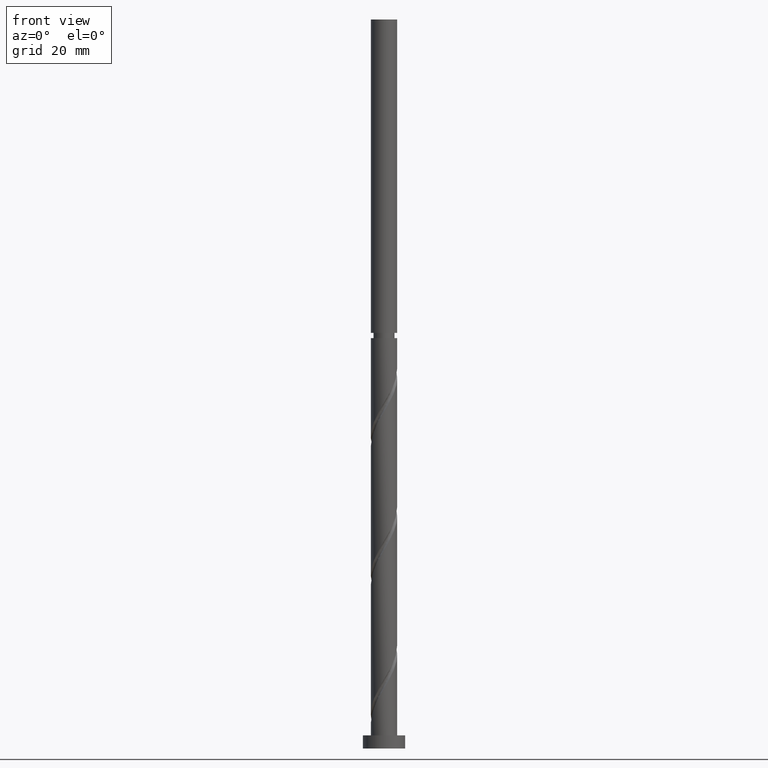
[diagram: clean part render]
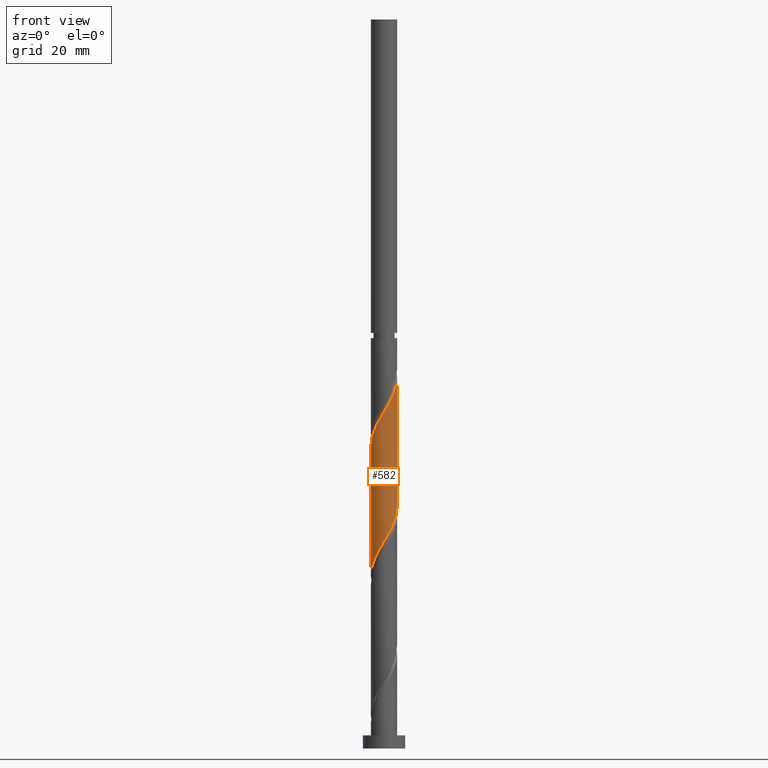
[diagram: same view with one face highlighted and labeled with its STEP entity id]
A machine part, front view. The second image highlights one B-rep face of the part: STEP entity #582.
In plain terms, the highlighted cylindrical surface (edge-blend (fillet) strip) has radius 5 mm, axis along (-0, -0, -1).
Its self-contained STEP definition (entity closure, byte-faithful):
#2 = CARTESIAN_POINT ( 'NONE',  ( -0.9949874371066211864, -4.899999999999999467, 76.96452953022189547 ) ) ;
#13 = CARTESIAN_POINT ( 'NONE',  ( 3.983038583135035449, -3.022483026463116840, 86.33952953022193810 ) ) ;
#48 = ORIENTED_EDGE ( 'NONE', *, *, #783, .T. ) ;
#67 = CARTESIAN_POINT ( 'NONE',  ( -5.000000000000000000, 0.000000000000000000, 276.6500000000000341 ) ) ;
#103 = CARTESIAN_POINT ( 'NONE',  ( -1.229577616888956504, -4.846456322308676512, 125.7145295302219097 ) ) ;
#116 = CARTESIAN_POINT ( 'NONE',  ( -5.000000000000008882, -5.395667128031785037E-15, 114.6650124523158780 ) ) ;
#161 = CARTESIAN_POINT ( 'NONE',  ( -0.1203115516804408452, -4.998552303470705560, 127.5895295302218670 ) ) ;
#189 = CARTESIAN_POINT ( 'NONE',  ( -4.846456322308670295, -1.229577616888953173, 67.58952953022192389 ) ) ;
#200 = CARTESIAN_POINT ( 'NONE',  ( -1.547084842617165501, -4.787891840297520574, 76.02702953022192389 ) ) ;
#225 = CARTESIAN_POINT ( 'NONE',  ( 4.999999999999999112, -9.925639391815112352E-16, 91.76404660812796976 ) ) ;
#276 = DIRECTION ( 'NONE',  ( -0.000000000000000000, -0.000000000000000000, -1.000000000000000000 ) ) ;
#290 = CARTESIAN_POINT ( 'NONE',  ( -2.277187526117663730, -4.451338784106887658, 123.8395295302218813 ) ) ;
#346 = VERTEX_POINT ( 'NONE', #429 ) ;
#367 = CARTESIAN_POINT ( 'NONE',  ( 0.6835131349569547599, -4.984996447238920325, 79.77702953022193810 ) ) ;
#374 =( BOUNDED_CURVE ( )  B_SPLINE_CURVE ( 2, ( #225, #407, #775, #394, #2240, #563, #13, #2275, #2108, #2057, #1514, #935, #1685, #367, #1528, #963, #2, #200, #552, #977, #747, #1504, #1723, #1126, #1872, #590, #189, #2251, #1929, #758, #1321 ),
 .UNSPECIFIED., .F., .T. ) 
 B_SPLINE_CURVE_WITH_KNOTS ( ( 3, 2, 2, 2, 2, 2, 2, 2, 2, 2, 2, 2, 2, 2, 2, 3 ),
 ( 0.5545303401299220836, 0.5625000000000000000, 0.5714285714285713969, 0.5803571428571429047, 0.5892857142857143016, 0.5982142857142856984, 0.6071428571428570953, 0.6160714285714286031, 0.6250000000000000000, 0.6339285714285713969, 0.6428571428571429047, 0.6517857142857143016, 0.6607142857142856984, 0.6696428571428570953, 0.6785714285714286031, 0.6795303401299219725 ),
 .UNSPECIFIED. ) 
 CURVE ( )  GEOMETRIC_REPRESENTATION_ITEM ( )  RATIONAL_B_SPLINE_CURVE ( ( 0.9079949616361837617, 0.9039886423360469214, 0.9090909090909136125, 0.9033747362665885960, 0.9090909090909136125, 0.9033747362665885960, 0.9090909090909136125, 0.9033747362665885960, 0.9090909090909136125, 0.9033747362665885960, 0.9090909090909136125, 0.9033747362665885960, 0.9090909090909136125, 0.9033747362665885960, 0.9090909090909136125, 0.9033747362665885960, 0.9090909090909136125, 0.9033747362665885960, 0.9090909090909136125, 0.9033747362665885960, 0.9090909090909136125, 0.9033747362665885960, 0.9090909090909136125, 0.9033747362665885960, 0.9090909090909136125, 0.9033747362665885960, 0.9090909090909136125, 0.9033747362665885960, 0.9090909090909136125, 0.9084770030214555092, 0.9079949616361838727 ) ) 
 REPRESENTATION_ITEM ( '' )  );
#394 = CARTESIAN_POINT ( 'NONE',  ( 4.787891840297520574, -1.547084842617165945, 89.15202953022190968 ) ) ;
#407 = CARTESIAN_POINT ( 'NONE',  ( 5.000000000000000888, -0.5025189076296072699, 90.92577552916438322 ) ) ;
#429 = CARTESIAN_POINT ( 'NONE',  ( -4.999999999999999112, -1.357499101782833371E-14, 65.51404660812798397 ) ) ;
#470 = CARTESIAN_POINT ( 'NONE',  ( -3.210609744079815364, -3.833012532097932912, 121.9645295302218670 ) ) ;
#472 = VECTOR ( 'NONE', #2124, 1000.000000000000000 ) ;
#483 = CARTESIAN_POINT ( 'NONE',  ( -0.6835131349569575354, -4.984996447238927431, 126.6520295302219523 ) ) ;
#525 = CARTESIAN_POINT ( 'NONE',  ( 2.573702359565722020, -4.323590631524826478, 132.2770295302219097 ) ) ;
#552 = CARTESIAN_POINT ( 'NONE',  ( -2.060393601091442317, -4.555741235911170861, 75.08952953022190968 ) ) ;
#563 = CARTESIAN_POINT ( 'NONE',  ( 4.323590631524821148, -2.573702359565719799, 87.27702953022190968 ) ) ;
#578 = CARTESIAN_POINT ( 'NONE',  ( 5.000000000000007994, -2.432901084008798987E-15, 140.9150124523158354 ) ) ;
#582 = ADVANCED_FACE ( 'NONE', ( #780 ), #809, .T. ) ;
#590 = CARTESIAN_POINT ( 'NONE',  ( -4.707916197378419376, -1.775642098820951587, 68.52702953022192389 ) ) ;
#657 = EDGE_CURVE ( 'NONE', #2194, #2419, #2311, .T. ) ;
#707 = CARTESIAN_POINT ( 'NONE',  ( 2.060393601091443205, -4.555741235911177966, 131.3395295302218813 ) ) ;
#719 = CARTESIAN_POINT ( 'NONE',  ( 4.451338784106887658, -2.277187526117664174, 136.9645295302219097 ) ) ;
#734 = CARTESIAN_POINT ( 'NONE',  ( -4.787891840297527679, -1.547084842617165945, 117.2770295302218813 ) ) ;
#747 = CARTESIAN_POINT ( 'NONE',  ( -3.022483026463116840, -3.983038583135035449, 73.21452953022192389 ) ) ;
#758 = CARTESIAN_POINT ( 'NONE',  ( -5.000000000000000000, -0.06016448583195890820, 65.61440929635305963 ) ) ;
#775 = CARTESIAN_POINT ( 'NONE',  ( 4.899999999999999467, -0.9949874371066214085, 90.08952953022192389 ) ) ;
#780 = FACE_OUTER_BOUND ( 'NONE', #1092, .T. ) ;
#783 = EDGE_CURVE ( 'NONE', #1037, #346, #1964, .T. ) ;
#791 = CARTESIAN_POINT ( 'NONE',  ( 4.984996447238927431, -0.6835131349569582015, 139.7770295302219665 ) ) ;
#809 = CYLINDRICAL_SURFACE ( 'NONE', #1972, 5.000000000000000000 ) ;
#894 = CARTESIAN_POINT ( 'NONE',  ( 0.4428900315960757061, -5.012108159702488130, 128.5270295302219097 ) ) ;
#907 = CARTESIAN_POINT ( 'NONE',  ( 3.471263693360517877, -3.642486534745257742, 134.1520295302219381 ) ) ;
#935 = CARTESIAN_POINT ( 'NONE',  ( 1.775642098820951587, -4.707916197378419376, 81.65202953022193810 ) ) ;
#947 = CARTESIAN_POINT ( 'NONE',  ( -5.000000000000007994, -5.395667128031785825E-15, 114.6650124523158780 ) ) ;
#963 = CARTESIAN_POINT ( 'NONE',  ( -0.4428900315960770939, -5.012108159702480137, 77.90202953022195231 ) ) ;
#977 = CARTESIAN_POINT ( 'NONE',  ( -2.573702359565719355, -4.323590631524821148, 74.15202953022189547 ) ) ;
#1026 = EDGE_CURVE ( 'NONE', #1037, #2194, #1177, .T. ) ;
#1034 = CARTESIAN_POINT ( 'NONE',  ( -4.555741235911177966, -2.060393601091443649, 118.2145295302218955 ) ) ;
#1037 = VERTEX_POINT ( 'NONE', #947 ) ;
#1043 = EDGE_CURVE ( 'NONE', #2419, #346, #374, .T. ) ;
#1092 = EDGE_LOOP ( 'NONE', ( #1938, #2065, #48, #1853 ) ) ;
#1114 = CARTESIAN_POINT ( 'NONE',  ( -4.323590631524826478, -2.573702359565722020, 119.1520295302219097 ) ) ;
#1126 = CARTESIAN_POINT ( 'NONE',  ( -4.194761370835346170, -2.778732953414366769, 70.40202953022190968 ) ) ;
#1174 = DIRECTION ( 'NONE',  ( -1.000000000000000000, 0.000000000000000000, 0.000000000000000000 ) ) ;
#1177 =( BOUNDED_CURVE ( )  B_SPLINE_CURVE ( 2, ( #116, #2345, #1467, #734, #1034, #1114, #1412, #1425, #470, #1233, #290, #1794, #103, #483, #161, #894, #1644, #2396, #707, #525, #1281, #907, #1660, #2409, #719, #1492, #1363, #791, #1696, #1309, #1882 ),
 .UNSPECIFIED., .F., .T. ) 
 B_SPLINE_CURVE_WITH_KNOTS ( ( 3, 2, 2, 2, 2, 2, 2, 2, 2, 2, 2, 2, 2, 2, 2, 3 ),
 ( 0.5545303401299223056, 0.5625000000000000000, 0.5714285714285713969, 0.5803571428571427937, 0.5892857142857143016, 0.5982142857142856984, 0.6071428571428572063, 0.6160714285714286031, 0.6250000000000000000, 0.6339285714285713969, 0.6428571428571427937, 0.6517857142857143016, 0.6607142857142856984, 0.6696428571428572063, 0.6785714285714286031, 0.6795303401299220836 ),
 .UNSPECIFIED. ) 
 CURVE ( )  GEOMETRIC_REPRESENTATION_ITEM ( )  RATIONAL_B_SPLINE_CURVE ( ( 0.9079949616361899789, 0.9039886423360535828, 0.9090909090909201629, 0.9033747362665951464, 0.9090909090909201629, 0.9033747362665951464, 0.9090909090909201629, 0.9033747362665951464, 0.9090909090909201629, 0.9033747362665951464, 0.9090909090909201629, 0.9033747362665951464, 0.9090909090909201629, 0.9033747362665951464, 0.9090909090909201629, 0.9033747362665951464, 0.9090909090909201629, 0.9033747362665951464, 0.9090909090909201629, 0.9033747362665951464, 0.9090909090909201629, 0.9033747362665951464, 0.9090909090909201629, 0.9033747362665951464, 0.9090909090909201629, 0.9033747362665951464, 0.9090909090909201629, 0.9033747362665951464, 0.9090909090909201629, 0.9084770030214619485, 0.9079949616361903120 ) ) 
 REPRESENTATION_ITEM ( '' )  );
#1233 = CARTESIAN_POINT ( 'NONE',  ( -2.778732953414372986, -4.194761370835350611, 122.9020295302219381 ) ) ;
#1242 = VECTOR ( 'NONE', #276, 1000.000000000000000 ) ;
#1281 = CARTESIAN_POINT ( 'NONE',  ( 3.022483026463119504, -3.983038583135042554, 133.2145295302218813 ) ) ;
#1309 = CARTESIAN_POINT ( 'NONE',  ( 5.000000000000006217, -0.06016448583195407873, 140.8146497640907171 ) ) ;
#1321 = CARTESIAN_POINT ( 'NONE',  ( -4.999999999999999112, -1.357499101782833371E-14, 65.51404660812798397 ) ) ;
#1363 = CARTESIAN_POINT ( 'NONE',  ( 4.846456322308676512, -1.229577616888956726, 138.8395295302219097 ) ) ;
#1380 = CARTESIAN_POINT ( 'NONE',  ( 5.000000000000000000, 6.123233995736766282E-16, 276.6500000000000341 ) ) ;
#1412 = CARTESIAN_POINT ( 'NONE',  ( -3.983038583135042554, -3.022483026463119504, 120.0895295302218955 ) ) ;
#1425 = CARTESIAN_POINT ( 'NONE',  ( -3.642486534745257742, -3.471263693360517877, 121.0270295302219097 ) ) ;
#1467 = CARTESIAN_POINT ( 'NONE',  ( -4.900000000000005684, -0.9949874371066209644, 116.3395295302218670 ) ) ;
#1492 = CARTESIAN_POINT ( 'NONE',  ( 4.707916197378425593, -1.775642098820955583, 137.9020295302218813 ) ) ;
#1497 = CARTESIAN_POINT ( 'NONE',  ( 4.999999999999999112, -9.925639391815112352E-16, 91.76404660812796976 ) ) ;
#1504 = CARTESIAN_POINT ( 'NONE',  ( -3.471263693360513880, -3.642486534745251525, 72.27702953022195231 ) ) ;
#1514 = CARTESIAN_POINT ( 'NONE',  ( 2.277187526117658400, -4.451338784106882329, 82.58952953022192389 ) ) ;
#1528 = CARTESIAN_POINT ( 'NONE',  ( 0.1203115516804388052, -4.998552303470700231, 78.83952953022190968 ) ) ;
#1562 = CARTESIAN_POINT ( 'NONE',  ( 0.000000000000000000, 0.000000000000000000, 276.6500000000000341 ) ) ;
#1644 = CARTESIAN_POINT ( 'NONE',  ( 0.9949874371066205203, -4.900000000000005684, 129.4645295302219097 ) ) ;
#1660 = CARTESIAN_POINT ( 'NONE',  ( 3.833012532097932468, -3.210609744079815364, 135.0895295302219097 ) ) ;
#1685 = CARTESIAN_POINT ( 'NONE',  ( 1.229577616888953173, -4.846456322308670295, 80.71452953022189547 ) ) ;
#1696 = CARTESIAN_POINT ( 'NONE',  ( 4.998552303470705560, -0.1203115516804412755, 140.7145295302219097 ) ) ;
#1723 = CARTESIAN_POINT ( 'NONE',  ( -3.833012532097928471, -3.210609744079808703, 71.33952953022192389 ) ) ;
#1794 = CARTESIAN_POINT ( 'NONE',  ( -1.775642098820955583, -4.707916197378425593, 124.7770295302219097 ) ) ;
#1853 = ORIENTED_EDGE ( 'NONE', *, *, #1043, .F. ) ;
#1872 = CARTESIAN_POINT ( 'NONE',  ( -4.451338784106882329, -2.277187526117658400, 69.46452953022193810 ) ) ;
#1882 = CARTESIAN_POINT ( 'NONE',  ( 5.000000000000007994, -2.432901084008798987E-15, 140.9150124523158354 ) ) ;
#1929 = CARTESIAN_POINT ( 'NONE',  ( -4.998552303470700231, -0.1203115516804390411, 65.71452953022190968 ) ) ;
#1938 = ORIENTED_EDGE ( 'NONE', *, *, #657, .F. ) ;
#1945 = DIRECTION ( 'NONE',  ( -0.000000000000000000, -0.000000000000000000, -1.000000000000000000 ) ) ;
#1964 = LINE ( 'NONE', #67, #1242 ) ;
#1972 = AXIS2_PLACEMENT_3D ( 'NONE', #1562, #1945, #1174 ) ;
#2057 = CARTESIAN_POINT ( 'NONE',  ( 2.778732953414366769, -4.194761370835346170, 83.52702953022190968 ) ) ;
#2065 = ORIENTED_EDGE ( 'NONE', *, *, #1026, .F. ) ;
#2108 = CARTESIAN_POINT ( 'NONE',  ( 3.210609744079808703, -3.833012532097928915, 84.46452953022189547 ) ) ;
#2124 = DIRECTION ( 'NONE',  ( -0.000000000000000000, -0.000000000000000000, -1.000000000000000000 ) ) ;
#2194 = VERTEX_POINT ( 'NONE', #578 ) ;
#2240 = CARTESIAN_POINT ( 'NONE',  ( 4.555741235911170861, -2.060393601091442761, 88.21452953022188126 ) ) ;
#2251 = CARTESIAN_POINT ( 'NONE',  ( -4.984996447238920325, -0.6835131349569548709, 66.65202953022190968 ) ) ;
#2275 = CARTESIAN_POINT ( 'NONE',  ( 3.642486534745251525, -3.471263693360513880, 85.40202953022190968 ) ) ;
#2311 = LINE ( 'NONE', #1380, #472 ) ;
#2345 = CARTESIAN_POINT ( 'NONE',  ( -5.000000000000004441, -0.5025189076296199264, 115.5032835312794788 ) ) ;
#2396 = CARTESIAN_POINT ( 'NONE',  ( 1.547084842617165279, -4.787891840297527679, 130.4020295302219665 ) ) ;
#2409 = CARTESIAN_POINT ( 'NONE',  ( 4.194761370835350611, -2.778732953414372986, 136.0270295302218813 ) ) ;
#2419 = VERTEX_POINT ( 'NONE', #1497 ) ;